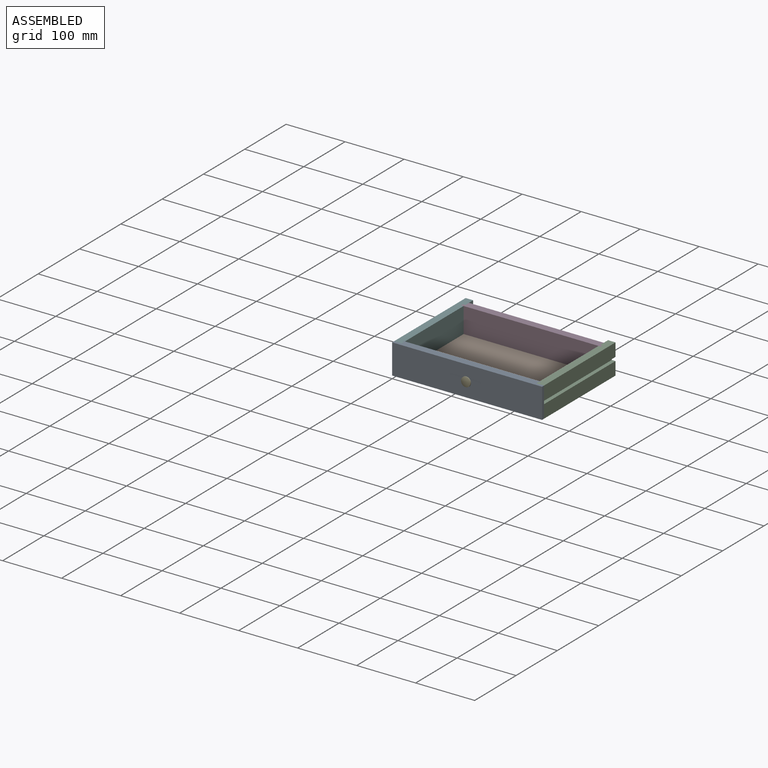
[diagram: assembled view]
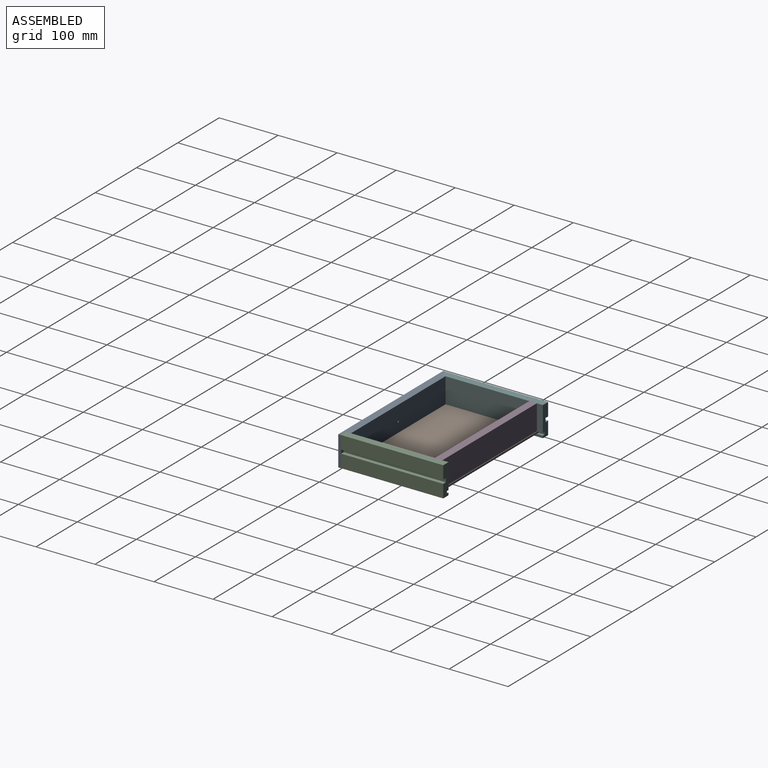
[diagram: assembled view, second angle]
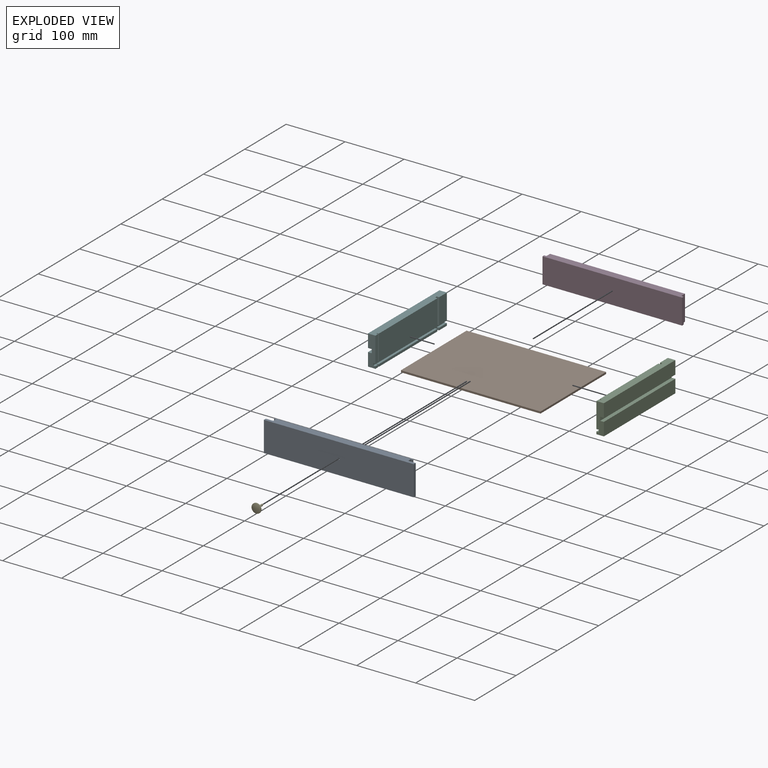
[diagram: exploded view]
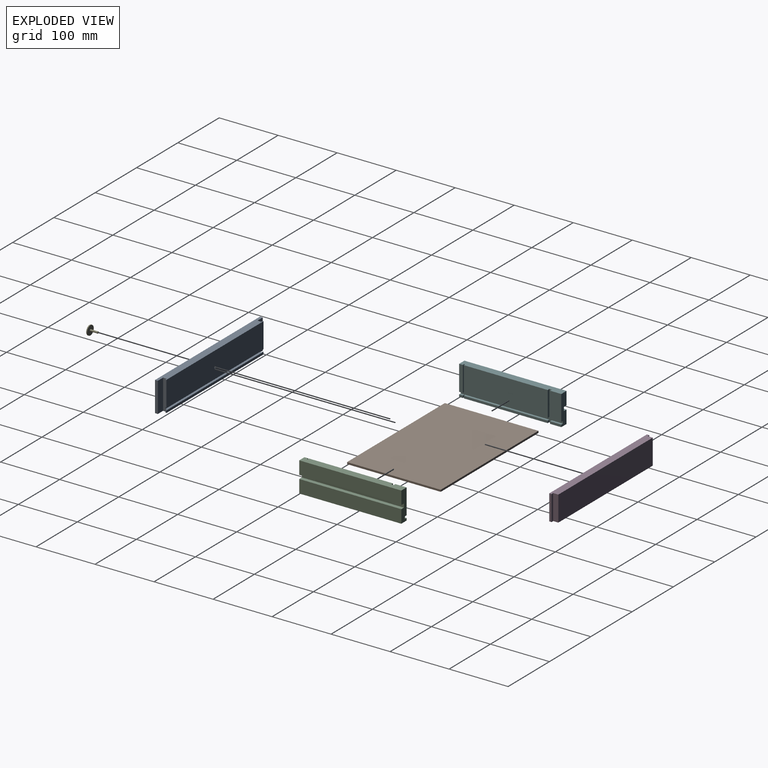
[diagram: exploded view, second angle]
ASSEMBLY  parts=6 mates=6
PART A: 23 faces, bbox 254x12.7x50.8 mm
  f0: plane 234.95x42.88mm, normal (0,1,0), area 10065.6mm2, adj f2,f10,f18,f20,f22
  f1: plane 3.96x1.59mm, normal (-1,0,0), area 6.3mm2, adj f7,f12,f17,f21
  f2: plane 42.88x1.59mm, normal (1,0,0), area 68.1mm2, adj f0,f3,f10,f20
  f3: plane 42.88x3.18mm, normal (0,-1,0), area 136.1mm2, adj f2,f4,f10,f20
  f4: plane 50.8x6.35mm, normal (1,0,0), area 313.2mm2, adj f3,f10,f12,f14,f15,f19,f20,f21
  f5: plane 50.8x6.35mm, normal (-1,0,0), area 313.2mm2, adj f6,f10,f12,f16,f17,f19,f20,f21
  f6: plane 42.88x3.18mm, normal (0,-1,0), area 136.1mm2, adj f5,f10,f18,f20
  f7: plane 234.95x3.96mm, normal (0,1,0), area 931mm2, adj f1,f12,f13,f21
  f8: plane 50.8x4.76mm, normal (-1,0,0), area 241.9mm2, adj f10,f11,f12,f16
  f9: plane 50.8x4.76mm, normal (1,0,0), area 241.9mm2, adj f10,f11,f12,f14
  f10: plane 254x12.7mm, normal (0,0,1), area 3034.3mm2, adj f0,f2,f3,f4,f5,f6,f8,f9
  f11: plane 254x50.8mm, normal (0,-1,0), area 12895.3mm2, adj f8,f9,f10,f12,f22
  f12: plane 254x12.7mm, normal (0,0,-1), area 3034.3mm2, adj f1,f4,f5,f7,f8,f9,f11,f13
  f13: plane 3.96x1.59mm, normal (1,0,0), area 6.3mm2, adj f7,f12,f15,f21
  f14: plane 50.8x12.7mm, normal (0,1,0), area 645.2mm2, adj f4,f9,f10,f12
  f15: plane 3.96x3.18mm, normal (0,-1,0), area 12.6mm2, adj f4,f12,f13,f21
  f16: plane 50.8x12.7mm, normal (0,1,0), area 645.2mm2, adj f5,f8,f10,f12
  f17: plane 3.96x3.18mm, normal (0,-1,0), area 12.6mm2, adj f1,f5,f12,f21
  f18: plane 42.88x1.59mm, normal (-1,0,0), area 68.1mm2, adj f0,f6,f10,f20
  f19: plane 228.6x3.96mm, normal (0,1,0), area 905.8mm2, adj f4,f5,f20,f21
  f20: plane 234.95x3.96mm, normal (0,0,-1), area 915.9mm2, adj f0,f2,f3,f4,f5,f6,f18,f19
  f21: plane 234.95x3.96mm, normal (0,0,1), area 915.9mm2, adj f1,f4,f5,f7,f13,f15,f17,f19
  f22: cylinder r=1.59mm len=12.7mm, axis (0,-1,0), area 126.7mm2, adj f0,f11
PART B: 6 faces, bbox 236.5x158.7x3.2 mm
  f0: plane 158.74x3.18mm, normal (-1,0,0), area 504mm2, adj f1,f2,f3,f4
  f1: plane 236.53x158.74mm, normal (0,0,-1), area 37546.8mm2, adj f0,f2,f4,f5
  f2: plane 236.53x3.18mm, normal (0,-1,0), area 751mm2, adj f0,f1,f3,f5
  f3: plane 236.53x158.74mm, normal (0,0,1), area 37546.8mm2, adj f0,f2,f4,f5
  f4: plane 236.53x3.18mm, normal (0,1,0), area 751mm2, adj f0,f1,f3,f5
  f5: plane 158.74x3.18mm, normal (1,0,0), area 504mm2, adj f1,f2,f3,f4
PART C: 30 faces, bbox 12.7x173x50.8 mm
  f0: plane 142.08x42.88mm, normal (-1,0,0), area 6091.8mm2, adj f4,f10,f22,f23
  f1: plane 42.88x6.35mm, normal (-1,0,0), area 272.3mm2, adj f6,f7,f22,f23
  f2: plane 173.04x22.23mm, normal (1,0,0), area 3845.8mm2, adj f7,f8,f22,f27
  f3: plane 42.88x19.05mm, normal (-1,0,0), area 816.8mm2, adj f8,f9,f22,f25
  f4: plane 42.88x3.18mm, normal (0,-1,0), area 136.1mm2, adj f0,f5,f22,f23
  f5: plane 42.88x1.59mm, normal (-1,0,0), area 68.1mm2, adj f4,f6,f22,f23
  f6: plane 42.88x3.18mm, normal (0,1,0), area 136.1mm2, adj f1,f5,f22,f23
  f7: plane 50.8x12.7mm, normal (0,-1,0), area 589.1mm2, adj f1,f2,f11,f16,f17,f20,f22,f23
  f8: plane 50.8x12.7mm, normal (0,1,0), area 589.1mm2, adj f2,f3,f11,f17,f18,f20,f22,f25
  f9: plane 42.88x3.96mm, normal (0,-1,0), area 169.9mm2, adj f3,f20,f22,f25
  f10: plane 42.88x3.96mm, normal (0,1,0), area 169.9mm2, adj f0,f20,f22,f23
  f11: plane 173.04x12.7mm, normal (0,0,-1), area 2176.8mm2, adj f7,f8,f12,f13,f14,f15,f16,f17
  f12: plane 142.08x3.96mm, normal (-1,0,0), area 563mm2, adj f11,f13,f21,f24
  f13: plane 3.96x3.18mm, normal (0,-1,0), area 12.6mm2, adj f11,f12,f14,f24
  f14: plane 3.96x1.59mm, normal (-1,0,0), area 6.3mm2, adj f11,f13,f15,f24
  f15: plane 3.96x3.18mm, normal (0,1,0), area 12.6mm2, adj f11,f14,f16,f24
  f16: plane 6.35x3.96mm, normal (-1,0,0), area 25.2mm2, adj f7,f11,f15,f24
  f17: plane 173.04x22.23mm, normal (1,0,0), area 3845.8mm2, adj f7,f8,f11,f28
  f18: plane 19.05x3.96mm, normal (-1,0,0), area 75.5mm2, adj f8,f11,f19,f26
  f19: plane 3.96x3.96mm, normal (0,-1,0), area 15.7mm2, adj f11,f18,f20,f26
  f20: plane 173.04x50.8mm, normal (-1,0,0), area 871.5mm2, adj f7,f8,f9,f10,f11,f19,f21,f22
  f21: plane 3.96x3.96mm, normal (0,1,0), area 15.7mm2, adj f11,f12,f20,f24
  f22: plane 173.04x12.7mm, normal (0,0,1), area 2176.8mm2, adj f0,f1,f2,f3,f4,f5,f6,f7
  f23: plane 150.02x3.96mm, normal (0,0,-1), area 589.4mm2, adj f0,f1,f4,f5,f6,f7,f10,f20
  f24: plane 150.02x3.96mm, normal (0,0,1), area 589.4mm2, adj f7,f12,f13,f14,f15,f16,f20,f21
  f25: plane 19.05x3.96mm, normal (0,0,-1), area 75.5mm2, adj f3,f8,f9,f20
  f26: plane 19.05x3.96mm, normal (0,0,1), area 75.5mm2, adj f8,f18,f19,f20
  f27: plane 173.04x6.35mm, normal (0,0,-1), area 1098.8mm2, adj f2,f7,f8,f29
  f28: plane 173.04x6.35mm, normal (0,0,1), area 1098.8mm2, adj f7,f8,f17,f29
  f29: plane 173.04x6.35mm, normal (1,0,0), area 1098.8mm2, adj f7,f8,f27,f28
PART D: 10 faces, bbox 236.5x12.7x42.9 mm
  f0: plane 236.53x12.7mm, normal (0,0,-1), area 2934.7mm2, adj f1,f2,f3,f4,f5,f6,f7,f8
  f1: plane 236.53x42.88mm, normal (0,-1,0), area 10141.3mm2, adj f0,f2,f8,f9
  f2: plane 42.88x3.97mm, normal (1,0,0), area 170.2mm2, adj f0,f1,f3,f9
  f3: plane 42.88x3.96mm, normal (0,1,0), area 169.9mm2, adj f0,f2,f4,f9
  f4: plane 42.88x8.73mm, normal (1,0,0), area 374.4mm2, adj f0,f3,f5,f9
  f5: plane 228.6x42.88mm, normal (0,1,0), area 9801.3mm2, adj f0,f4,f6,f9
  f6: plane 42.88x8.73mm, normal (-1,0,0), area 374.4mm2, adj f0,f5,f7,f9
  f7: plane 42.88x3.97mm, normal (0,1,0), area 170.2mm2, adj f0,f6,f8,f9
  f8: plane 42.88x3.97mm, normal (-1,0,0), area 170.2mm2, adj f0,f1,f7,f9
  f9: plane 236.53x12.7mm, normal (0,0,1), area 2934.7mm2, adj f1,f2,f3,f4,f5,f6,f7,f8
PART E: 5 faces, bbox 15.9x15.9x15.9 mm
  f0: plane 3.18x3.18mm, normal (0,-1,0), area 7.9mm2, adj f4
  f1: sphere r=25.4mm, area 203mm2, adj f2
  f2: cylinder r=7.94mm len=15.88mm, axis (0,-1,0), area 78.5mm2, adj f1,f3
  f3: plane 15.88x15.88mm, normal (0,-1,0), area 190mm2, adj f2,f4
  f4: cylinder r=1.59mm len=13.03mm, axis (0,-1,0), area 129.9mm2, adj f0,f3
PART F: 32 faces, bbox 12.7x173.1x50.8 mm
  f0: plane 42.88x6.35mm, normal (1,0,0), area 272.3mm2, adj f3,f5,f22,f30
  f1: plane 142.08x42.88mm, normal (1,0,0), area 6091.8mm2, adj f7,f8,f22,f30
  f2: plane 42.88x19.05mm, normal (1,0,0), area 816.8mm2, adj f4,f9,f22,f26
  f3: plane 50.8x12.7mm, normal (0,-1,0), area 589.1mm2, adj f0,f10,f11,f12,f13,f22,f23,f24
  f4: plane 50.8x12.7mm, normal (0,1,0), area 589.1mm2, adj f2,f10,f11,f12,f21,f22,f23,f24
  f5: plane 42.88x3.18mm, normal (0,1,0), area 136.1mm2, adj f0,f6,f22,f30
  f6: plane 42.88x1.59mm, normal (1,0,0), area 68.1mm2, adj f5,f7,f22,f30
  f7: plane 42.88x3.18mm, normal (0,-1,0), area 136.1mm2, adj f1,f6,f22,f30
  f8: plane 42.88x3.97mm, normal (0,1,0), area 170.2mm2, adj f1,f19,f22,f30
  f9: plane 42.88x3.97mm, normal (0,-1,0), area 170mm2, adj f2,f19,f22,f26
  f10: plane 173.04x22.23mm, normal (-1,0,0), area 3845.8mm2, adj f3,f4,f22,f24
  f11: plane 173.04x12.7mm, normal (0,0,-1), area 2176.8mm2, adj f3,f4,f12,f13,f14,f15,f16,f17
  f12: plane 173.04x22.23mm, normal (-1,0,0), area 3845.8mm2, adj f3,f4,f11,f23
  f13: plane 6.35x3.96mm, normal (1,0,0), area 25.2mm2, adj f3,f11,f14,f31
  f14: plane 3.96x3.18mm, normal (0,1,0), area 12.6mm2, adj f11,f13,f15,f31
  f15: plane 3.96x1.59mm, normal (1,0,0), area 6.3mm2, adj f11,f14,f16,f31
  f16: plane 3.96x3.18mm, normal (0,-1,0), area 12.6mm2, adj f11,f15,f17,f31
  f17: plane 142.08x3.96mm, normal (1,0,0), area 563mm2, adj f11,f16,f18,f31
  f18: plane 3.97x3.96mm, normal (0,1,0), area 15.7mm2, adj f11,f17,f19,f31
  f19: plane 50.81x3.98mm, normal (1,0,0), area 201.6mm2, adj f8,f9,f11,f18,f20,f22,f28,f29
  f20: plane 3.97x3.96mm, normal (0,-1,0), area 15.7mm2, adj f11,f19,f21,f27
  f21: plane 19.05x3.96mm, normal (1,0,0), area 75.5mm2, adj f4,f11,f20,f27
  f22: plane 173.04x12.7mm, normal (0,0,1), area 2176.8mm2, adj f0,f1,f2,f3,f4,f5,f6,f7
  f23: plane 173.04x6.35mm, normal (0,0,1), area 1098.8mm2, adj f3,f4,f12,f25
  f24: plane 173.04x6.35mm, normal (0,0,-1), area 1098.8mm2, adj f3,f4,f10,f25
  f25: plane 173.04x6.35mm, normal (-1,0,0), area 1098.8mm2, adj f3,f4,f23,f24
  f26: plane 19.05x3.97mm, normal (0,0,-1), area 75.5mm2, adj f2,f4,f9,f28
  f27: plane 19.05x3.97mm, normal (0,0,1), area 75.5mm2, adj f4,f20,f21,f28
  f28: plane 19.06x3.98mm, normal (1,0,0), area 75.5mm2, adj f4,f19,f26,f27
  f29: plane 150.03x3.98mm, normal (1,0,0), area 594.4mm2, adj f3,f19,f30,f31
  f30: plane 150.02x3.97mm, normal (0,0,-1), area 589.4mm2, adj f0,f1,f3,f5,f6,f7,f8,f29
  f31: plane 150.02x3.97mm, normal (0,0,1), area 589.4mm2, adj f3,f13,f14,f15,f16,f17,f18,f29
PLACE A t=(352.55,21.81,0)mm fixed
PLACE B t=(352.55,21.81,0)mm
PLACE C t=(352.55,21.81,0)mm
PLACE D t=(352.55,21.81,0)mm
PLACE E rot(axis=(1,0,0),180deg) t=(127,11.13,25.4)mm
PLACE F t=(352.55,21.81,0)mm
MATE slider B.f4 <-> F.f4  axis (0,-1,0) through (8.74,167.48,3.96)mm
MATE fastened C.f20 <-> D.f2  axis (-1,0,0) through (245.26,154.78,50.8)mm
MATE fastened E.f2 <-> A.f22  axis (0,1,0) through (127,11.13,25.4)mm
MATE fastened A.f18 <-> F.f6  axis (1,0,0) through (9.53,12.7,50.8)mm
MATE planar D.f5 <-> B.f4  axis (0,1,0) through (12.7,167.48,29.36)mm
MATE fastened A.f2 <-> C.f5  axis (1,0,0) through (244.48,12.7,50.8)mm
